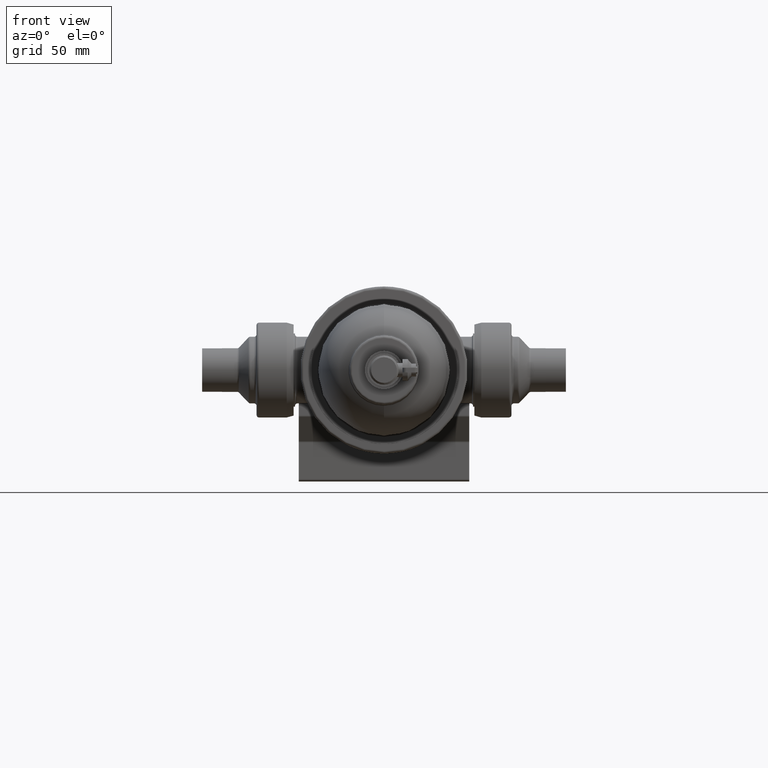
[diagram: clean part render]
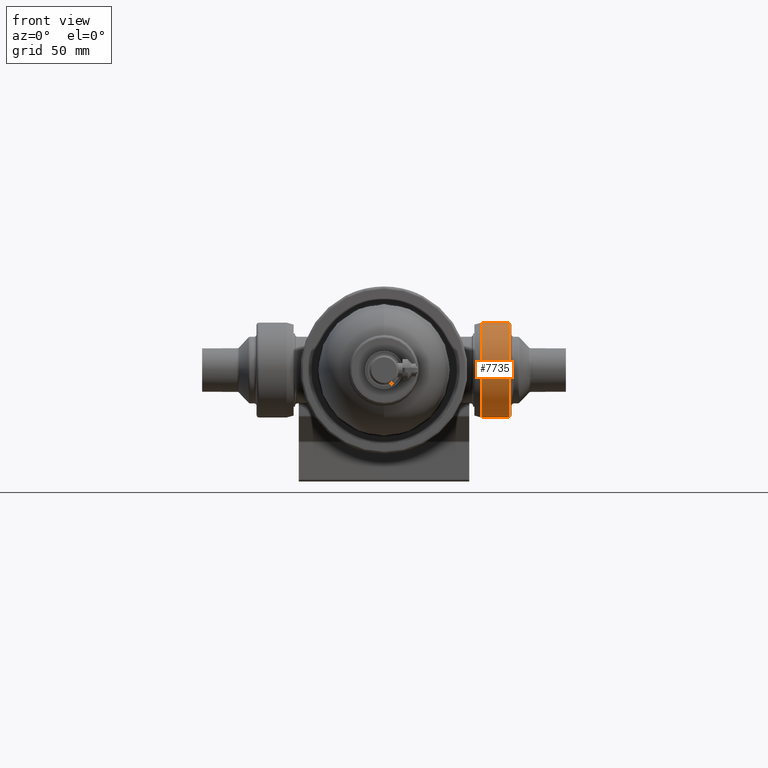
[diagram: same view with one face highlighted and labeled with its STEP entity id]
A machine part, front view. The second image highlights one B-rep face of the part: STEP entity #7735.
In plain terms, the highlighted cylindrical surface (partial cylindrical patch) has radius 37 mm, axis along (-1, -0, -0).
Its self-contained STEP definition (entity closure, byte-faithful):
#520 = CARTESIAN_POINT ( 'NONE',  ( 97.50000000000000000, 0.0000000000000000000, 37.00000000000000000 ) ) ;
#1453 = AXIS2_PLACEMENT_3D ( 'NONE', #6055, #13926, #7187 ) ;
#2132 = CARTESIAN_POINT ( 'NONE',  ( 97.50000000000000000, 4.531193156845206793E-15, -37.00000000000000000 ) ) ;
#2724 = CARTESIAN_POINT ( 'NONE',  ( 75.89999999999999147, 4.531193156845206793E-15, 37.00000000000000000 ) ) ;
#2886 = CARTESIAN_POINT ( 'NONE',  ( 75.89999999999999147, 0.0000000000000000000, 0.0000000000000000000 ) ) ;
#3077 = VECTOR ( 'NONE', #4169, 1000.000000000000000 ) ;
#3091 = ORIENTED_EDGE ( 'NONE', *, *, #11427, .F. ) ;
#3394 = CYLINDRICAL_SURFACE ( 'NONE', #10153, 37.00000000000000000 ) ;
#3443 = VECTOR ( 'NONE', #8302, 1000.000000000000000 ) ;
#4001 = DIRECTION ( 'NONE',  ( 0.0000000000000000000, 0.0000000000000000000, 1.000000000000000000 ) ) ;
#4169 = DIRECTION ( 'NONE',  ( -1.000000000000000000, -0.0000000000000000000, -0.0000000000000000000 ) ) ;
#5249 = EDGE_CURVE ( 'NONE', #6601, #7015, #13816, .T. ) ;
#5267 = EDGE_CURVE ( 'NONE', #7015, #5315, #6441, .T. ) ;
#5283 = CARTESIAN_POINT ( 'NONE',  ( 0.0000000000000000000, 4.531193156845206793E-15, -37.00000000000000000 ) ) ;
#5315 = VERTEX_POINT ( 'NONE', #2724 ) ;
#5800 = EDGE_LOOP ( 'NONE', ( #11438, #11113, #7993, #3091 ) ) ;
#6055 = CARTESIAN_POINT ( 'NONE',  ( 97.50000000000000000, 0.0000000000000000000, 0.0000000000000000000 ) ) ;
#6441 = LINE ( 'NONE', #12800, #3443 ) ;
#6601 = VERTEX_POINT ( 'NONE', #2132 ) ;
#6908 = CARTESIAN_POINT ( 'NONE',  ( 75.89999999999999147, 0.0000000000000000000, -37.00000000000000000 ) ) ;
#7015 = VERTEX_POINT ( 'NONE', #520 ) ;
#7187 = DIRECTION ( 'NONE',  ( 0.0000000000000000000, 0.0000000000000000000, 1.000000000000000000 ) ) ;
#7735 = ADVANCED_FACE ( 'NONE', ( #10428 ), #3394, .T. ) ;
#7993 = ORIENTED_EDGE ( 'NONE', *, *, #5267, .T. ) ;
#8302 = DIRECTION ( 'NONE',  ( -1.000000000000000000, -0.0000000000000000000, -0.0000000000000000000 ) ) ;
#8735 = AXIS2_PLACEMENT_3D ( 'NONE', #2886, #10740, #4001 ) ;
#9020 = LINE ( 'NONE', #5283, #3077 ) ;
#9088 = VERTEX_POINT ( 'NONE', #6908 ) ;
#10153 = AXIS2_PLACEMENT_3D ( 'NONE', #11794, #11742, #11846 ) ;
#10428 = FACE_OUTER_BOUND ( 'NONE', #5800, .T. ) ;
#10740 = DIRECTION ( 'NONE',  ( -1.000000000000000000, -0.0000000000000000000, -0.0000000000000000000 ) ) ;
#11113 = ORIENTED_EDGE ( 'NONE', *, *, #5249, .T. ) ;
#11427 = EDGE_CURVE ( 'NONE', #9088, #5315, #13824, .T. ) ;
#11438 = ORIENTED_EDGE ( 'NONE', *, *, #12694, .F. ) ;
#11742 = DIRECTION ( 'NONE',  ( -1.000000000000000000, -0.0000000000000000000, -0.0000000000000000000 ) ) ;
#11794 = CARTESIAN_POINT ( 'NONE',  ( 0.0000000000000000000, 0.0000000000000000000, 0.0000000000000000000 ) ) ;
#11846 = DIRECTION ( 'NONE',  ( 0.0000000000000000000, 0.0000000000000000000, 1.000000000000000000 ) ) ;
#12694 = EDGE_CURVE ( 'NONE', #6601, #9088, #9020, .T. ) ;
#12800 = CARTESIAN_POINT ( 'NONE',  ( 0.0000000000000000000, 0.0000000000000000000, 37.00000000000000000 ) ) ;
#13816 = CIRCLE ( 'NONE', #1453, 37.00000000000000000 ) ;
#13824 = CIRCLE ( 'NONE', #8735, 37.00000000000000000 ) ;
#13926 = DIRECTION ( 'NONE',  ( -1.000000000000000000, -0.0000000000000000000, -0.0000000000000000000 ) ) ;